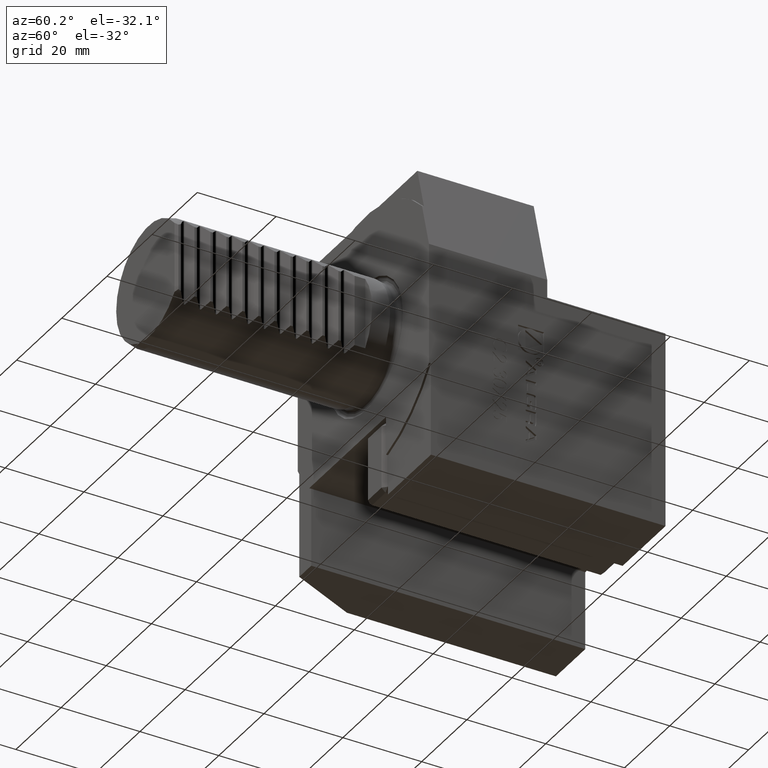
[diagram: clean part render]
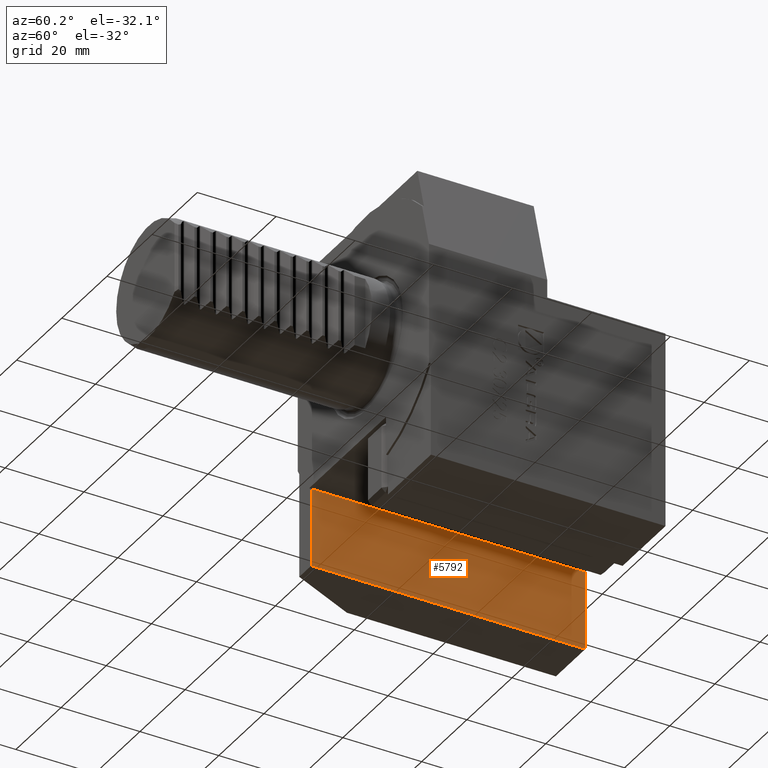
[diagram: same view with one face highlighted and labeled with its STEP entity id]
A machine part, auxiliary view. The second image highlights one B-rep face of the part: STEP entity #5792.
In plain terms, the highlighted planar face has unit normal (-1, -0, 0).
Its self-contained STEP definition (entity closure, byte-faithful):
#681 = DIRECTION ( 'NONE',  ( -1.000000000000000000, -1.295371175675670527E-16, 0.000000000000000000 ) ) ;
#908 = LINE ( 'NONE', #8461, #14034 ) ;
#927 = EDGE_CURVE ( 'NONE', #5506, #2177, #908, .T. ) ;
#935 = DIRECTION ( 'NONE',  ( 1.295371175675670527E-16, -1.000000000000000000, 0.000000000000000000 ) ) ;
#1516 = ORIENTED_EDGE ( 'NONE', *, *, #10658, .F. ) ;
#1832 = CARTESIAN_POINT ( 'NONE',  ( -25.00000000000000000, 0.4999999999999981681, -42.99999999999999289 ) ) ;
#1934 = PLANE ( 'NONE',  #14622 ) ;
#2014 = LINE ( 'NONE', #12254, #14600 ) ;
#2153 = EDGE_CURVE ( 'NONE', #2973, #8891, #2014, .T. ) ;
#2177 = VERTEX_POINT ( 'NONE', #2341 ) ;
#2341 = CARTESIAN_POINT ( 'NONE',  ( -25.00000000000000000, -2.137013792517668213E-15, -23.04343724360582257 ) ) ;
#2649 = CARTESIAN_POINT ( 'NONE',  ( -25.00000000000000000, -1.185962474818403623E-15, 0.000000000000000000 ) ) ;
#2955 = LINE ( 'NONE', #14671, #14838 ) ;
#2973 = VERTEX_POINT ( 'NONE', #8700 ) ;
#3611 = DIRECTION ( 'NONE',  ( 0.000000000000000000, 0.000000000000000000, -1.000000000000000000 ) ) ;
#4090 = LINE ( 'NONE', #15624, #5325 ) ;
#4292 = LINE ( 'NONE', #2649, #14873 ) ;
#5129 = CARTESIAN_POINT ( 'NONE',  ( -25.00000000000001066, 70.00000000000000000, -22.99999999999999645 ) ) ;
#5325 = VECTOR ( 'NONE', #6753, 1000.000000000000000 ) ;
#5474 = DIRECTION ( 'NONE',  ( -0.000000000000000000, 0.000000000000000000, 1.000000000000000000 ) ) ;
#5506 = VERTEX_POINT ( 'NONE', #5668 ) ;
#5668 = CARTESIAN_POINT ( 'NONE',  ( -25.00000000000000000, 0.4999999999999981681, -23.04343724360582257 ) ) ;
#5792 = ADVANCED_FACE ( 'Defeature completata2_71', ( #9913 ), #1934, .F. ) ;
#6753 = DIRECTION ( 'NONE',  ( 0.000000000000000000, 0.000000000000000000, -1.000000000000000000 ) ) ;
#7378 = DIRECTION ( 'NONE',  ( 1.295371175675670281E-16, -1.000000000000000000, 0.000000000000000000 ) ) ;
#7602 = LINE ( 'NONE', #5129, #16230 ) ;
#7998 = ORIENTED_EDGE ( 'NONE', *, *, #11299, .F. ) ;
#8461 = CARTESIAN_POINT ( 'NONE',  ( -25.00000000000000000, -3.238427939189176047E-15, -23.04343724360582257 ) ) ;
#8700 = CARTESIAN_POINT ( 'NONE',  ( -25.00000000000001066, 70.00000000000000000, -22.99999999999999645 ) ) ;
#8891 = VERTEX_POINT ( 'NONE', #13501 ) ;
#9913 = FACE_OUTER_BOUND ( 'NONE', #12874, .T. ) ;
#10658 = EDGE_CURVE ( 'NONE', #15384, #12837, #2955, .T. ) ;
#10859 = DIRECTION ( 'NONE',  ( 1.295371175675670527E-16, -1.000000000000000000, -0.000000000000000000 ) ) ;
#11299 = EDGE_CURVE ( 'NONE', #2177, #8891, #4292, .T. ) ;
#11429 = EDGE_CURVE ( 'NONE', #2973, #15384, #7602, .T. ) ;
#11854 = EDGE_CURVE ( 'NONE', #5506, #12837, #4090, .T. ) ;
#12147 = ORIENTED_EDGE ( 'NONE', *, *, #2153, .T. ) ;
#12254 = CARTESIAN_POINT ( 'NONE',  ( -25.00000000000001066, 70.00000000000000000, -22.99999999999999645 ) ) ;
#12837 = VERTEX_POINT ( 'NONE', #1832 ) ;
#12874 = EDGE_LOOP ( 'NONE', ( #12147, #7998, #12881, #15210, #1516, #14104 ) ) ;
#12881 = ORIENTED_EDGE ( 'NONE', *, *, #927, .F. ) ;
#13501 = CARTESIAN_POINT ( 'NONE',  ( -25.00000000000000000, 0.000000000000000000, -22.99999999999999645 ) ) ;
#14034 = VECTOR ( 'NONE', #7378, 1000.000000000000000 ) ;
#14104 = ORIENTED_EDGE ( 'NONE', *, *, #11429, .F. ) ;
#14600 = VECTOR ( 'NONE', #16151, 1000.000000000000000 ) ;
#14622 = AXIS2_PLACEMENT_3D ( 'NONE', #16068, #681, #935 ) ;
#14671 = CARTESIAN_POINT ( 'NONE',  ( -25.00000000000001066, 70.00000000000000000, -42.99999999999999289 ) ) ;
#14838 = VECTOR ( 'NONE', #10859, 1000.000000000000000 ) ;
#14873 = VECTOR ( 'NONE', #5474, 1000.000000000000000 ) ;
#15210 = ORIENTED_EDGE ( 'NONE', *, *, #11854, .T. ) ;
#15382 = CARTESIAN_POINT ( 'NONE',  ( -25.00000000000001066, 70.00000000000000000, -42.99999999999999289 ) ) ;
#15384 = VERTEX_POINT ( 'NONE', #15382 ) ;
#15624 = CARTESIAN_POINT ( 'NONE',  ( -25.00000000000000000, 0.4999999999999981681, -22.99999999999999645 ) ) ;
#16068 = CARTESIAN_POINT ( 'NONE',  ( -25.00000000000001066, 70.00000000000000000, -22.99999999999999645 ) ) ;
#16151 = DIRECTION ( 'NONE',  ( 1.295371175675670527E-16, -1.000000000000000000, -0.000000000000000000 ) ) ;
#16230 = VECTOR ( 'NONE', #3611, 1000.000000000000000 ) ;